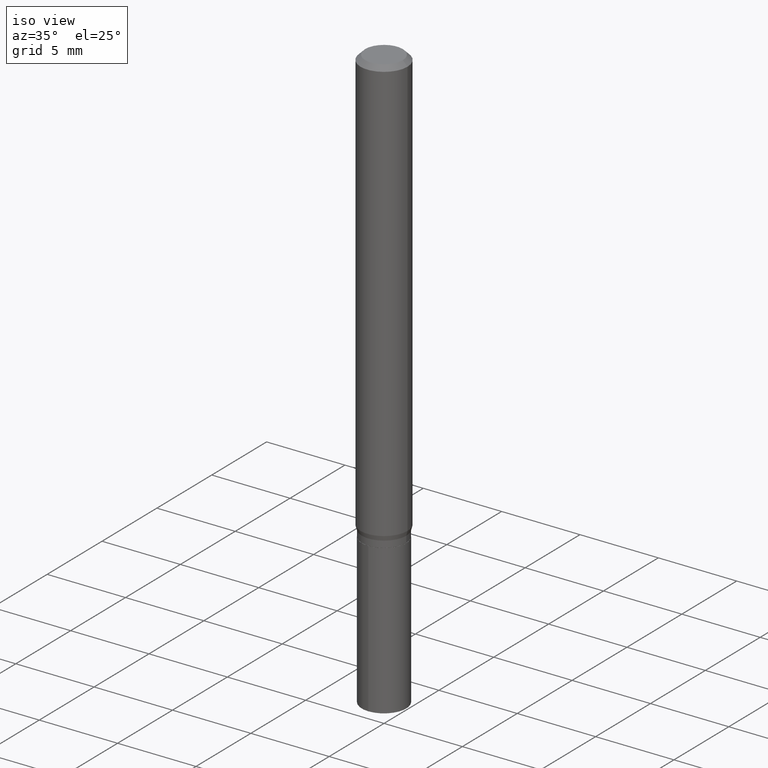
[diagram: clean part render]
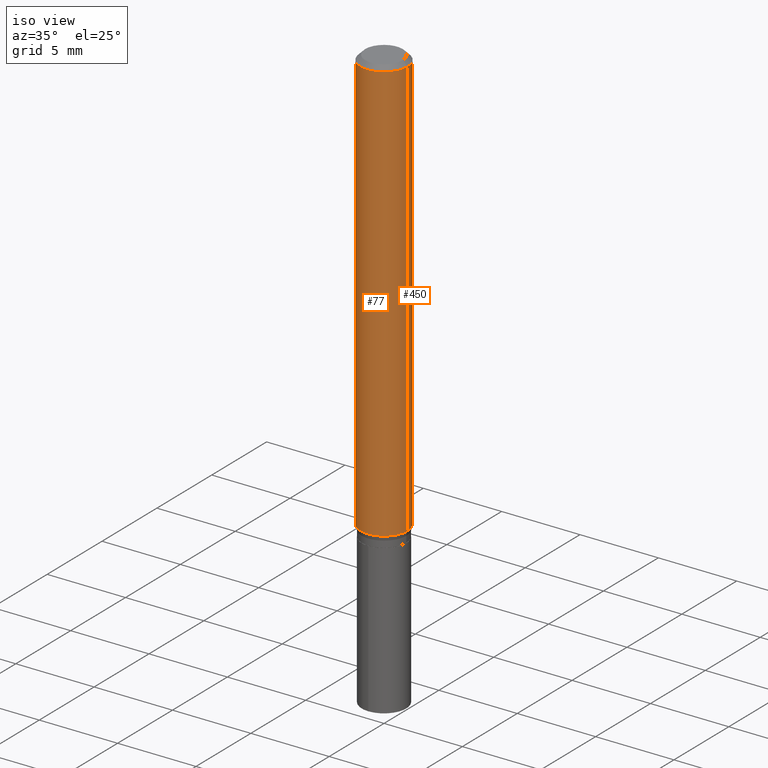
[diagram: same view with one multi-face feature highlighted, each face labeled with its STEP entity id]
A machine part, iso view. The highlighted faces form ONE feature: a constant-radius fillet chain: 2 tangent blend faces with common blend radius 1.4999 mm. The faces share edges in the B-rep.
Their STEP definitions:
[1] entity #77 (Cylinder):
#14 = CARTESIAN_POINT ( 'NONE',  ( 2.606732898851746017E-29, -3.721723723757996266E-15, -1.065944039956157496 ) ) ;
#65 = VECTOR ( 'NONE', #282, 39.37007874015748143 ) ;
#71 = DIRECTION ( 'NONE',  ( -2.445468806185136597E-29, 3.491481338843145583E-15, 1.000000000000000000 ) ) ;
#72 = ORIENTED_EDGE ( 'NONE', *, *, #99, .F. ) ;
#77 = ADVANCED_FACE ( 'NONE', ( #157 ), #399, .T. ) ;
#88 = CIRCLE ( 'NONE', #448, 0.05904999999999999832 ) ;
#99 = EDGE_CURVE ( 'NONE', #136, #147, #88, .T. ) ;
#114 = CARTESIAN_POINT ( 'NONE',  ( -0.05904999999999999832, -1.461903573718526716E-15, -0.01181000000000007218 ) ) ;
#129 = CARTESIAN_POINT ( 'NONE',  ( 0.05904999999999999832, -4.535783407291118600E-16, -0.01181000000000007218 ) ) ;
#136 = VERTEX_POINT ( 'NONE', #114 ) ;
#146 = VERTEX_POINT ( 'NONE', #287 ) ;
#147 = VERTEX_POINT ( 'NONE', #129 ) ;
#157 = FACE_OUTER_BOUND ( 'NONE', #386, .T. ) ;
#171 = EDGE_CURVE ( 'NONE', #378, #136, #398, .T. ) ;
#172 = AXIS2_PLACEMENT_3D ( 'NONE', #14, #71, #333 ) ;
#179 = ORIENTED_EDGE ( 'NONE', *, *, #256, .T. ) ;
#222 = CIRCLE ( 'NONE', #172, 0.05905000000000013016 ) ;
#225 = EDGE_CURVE ( 'NONE', #146, #147, #259, .T. ) ;
#235 = CARTESIAN_POINT ( 'NONE',  ( 0.000000000000000000, 0.000000000000000000, 0.000000000000000000 ) ) ;
#256 = EDGE_CURVE ( 'NONE', #378, #146, #222, .T. ) ;
#259 = LINE ( 'NONE', #375, #402 ) ;
#269 = CARTESIAN_POINT ( 'NONE',  ( 2.888098660104664204E-31, -4.123439461173780263E-17, -0.01181000000000007218 ) ) ;
#274 = DIRECTION ( 'NONE',  ( -2.445468806185136597E-29, 3.491481338843145583E-15, 1.000000000000000000 ) ) ;
#282 = DIRECTION ( 'NONE',  ( -2.445468806185136877E-29, 3.491481338843145188E-15, 1.000000000000000000 ) ) ;
#285 = AXIS2_PLACEMENT_3D ( 'NONE', #235, #321, #469 ) ;
#287 = CARTESIAN_POINT ( 'NONE',  ( 0.05905000000000013016, -4.134067669875371975E-15, -1.065944039956157496 ) ) ;
#289 = CARTESIAN_POINT ( 'NONE',  ( -0.05905000000000013016, -3.302148238291656773E-15, -1.065944039956157496 ) ) ;
#321 = DIRECTION ( 'NONE',  ( -2.445468806185136597E-29, 3.491481338843145583E-15, 1.000000000000000000 ) ) ;
#333 = DIRECTION ( 'NONE',  ( 1.000000000000000000, -6.982962677686265133E-15, 0.000000000000000000 ) ) ;
#375 = CARTESIAN_POINT ( 'NONE',  ( 0.05905000000000006771, -4.123439461173745257E-16, 2.879382386107503723E-30 ) ) ;
#378 = VERTEX_POINT ( 'NONE', #289 ) ;
#383 = ORIENTED_EDGE ( 'NONE', *, *, #171, .F. ) ;
#386 = EDGE_LOOP ( 'NONE', ( #383, #179, #446, #72 ) ) ;
#391 = CARTESIAN_POINT ( 'NONE',  ( -0.05905000000000006771, 4.195754854663396409E-16, -2.904631170795525045E-30 ) ) ;
#394 = DIRECTION ( 'NONE',  ( 1.000000000000000000, -6.982962677686266711E-15, 0.000000000000000000 ) ) ;
#398 = LINE ( 'NONE', #391, #65 ) ;
#399 = CYLINDRICAL_SURFACE ( 'NONE', #285, 0.05905000000000006771 ) ;
#402 = VECTOR ( 'NONE', #451, 39.37007874015748143 ) ;
#446 = ORIENTED_EDGE ( 'NONE', *, *, #225, .T. ) ;
#448 = AXIS2_PLACEMENT_3D ( 'NONE', #269, #274, #394 ) ;
#451 = DIRECTION ( 'NONE',  ( -2.445468806185136877E-29, 3.491481338843145188E-15, 1.000000000000000000 ) ) ;
#469 = DIRECTION ( 'NONE',  ( 1.000000000000000000, -6.982962677686266711E-15, 4.876176775795936353E-29 ) ) ;
[2] entity #450 (Cylinder):
#65 = VECTOR ( 'NONE', #282, 39.37007874015748143 ) ;
#80 = DIRECTION ( 'NONE',  ( 1.000000000000000000, -6.982962677686266711E-15, 0.000000000000000000 ) ) ;
#83 = DIRECTION ( 'NONE',  ( 1.000000000000000000, -6.982962677686266711E-15, 4.876176775795936353E-29 ) ) ;
#113 = ORIENTED_EDGE ( 'NONE', *, *, #441, .F. ) ;
#114 = CARTESIAN_POINT ( 'NONE',  ( -0.05904999999999999832, -1.461903573718526716E-15, -0.01181000000000007218 ) ) ;
#129 = CARTESIAN_POINT ( 'NONE',  ( 0.05904999999999999832, -4.535783407291118600E-16, -0.01181000000000007218 ) ) ;
#136 = VERTEX_POINT ( 'NONE', #114 ) ;
#146 = VERTEX_POINT ( 'NONE', #287 ) ;
#147 = VERTEX_POINT ( 'NONE', #129 ) ;
#168 = CIRCLE ( 'NONE', #353, 0.05905000000000013016 ) ;
#171 = EDGE_CURVE ( 'NONE', #378, #136, #398, .T. ) ;
#193 = CARTESIAN_POINT ( 'NONE',  ( 2.606732898851746017E-29, -3.721723723757996266E-15, -1.065944039956157496 ) ) ;
#224 = AXIS2_PLACEMENT_3D ( 'NONE', #464, #429, #83 ) ;
#225 = EDGE_CURVE ( 'NONE', #146, #147, #259, .T. ) ;
#259 = LINE ( 'NONE', #375, #402 ) ;
#266 = ORIENTED_EDGE ( 'NONE', *, *, #479, .T. ) ;
#273 = DIRECTION ( 'NONE',  ( -2.445468806185136597E-29, 3.491481338843145583E-15, 1.000000000000000000 ) ) ;
#275 = DIRECTION ( 'NONE',  ( -2.445468806185136597E-29, 3.491481338843145583E-15, 1.000000000000000000 ) ) ;
#276 = CARTESIAN_POINT ( 'NONE',  ( 2.888098660104664204E-31, -4.123439461173780263E-17, -0.01181000000000007218 ) ) ;
#278 = DIRECTION ( 'NONE',  ( 1.000000000000000000, -6.982962677686265133E-15, 0.000000000000000000 ) ) ;
#282 = DIRECTION ( 'NONE',  ( -2.445468806185136877E-29, 3.491481338843145188E-15, 1.000000000000000000 ) ) ;
#287 = CARTESIAN_POINT ( 'NONE',  ( 0.05905000000000013016, -4.134067669875371975E-15, -1.065944039956157496 ) ) ;
#289 = CARTESIAN_POINT ( 'NONE',  ( -0.05905000000000013016, -3.302148238291656773E-15, -1.065944039956157496 ) ) ;
#316 = CYLINDRICAL_SURFACE ( 'NONE', #224, 0.05905000000000006771 ) ;
#337 = ORIENTED_EDGE ( 'NONE', *, *, #171, .T. ) ;
#347 = ORIENTED_EDGE ( 'NONE', *, *, #225, .F. ) ;
#353 = AXIS2_PLACEMENT_3D ( 'NONE', #193, #275, #278 ) ;
#362 = CIRCLE ( 'NONE', #377, 0.05904999999999999832 ) ;
#375 = CARTESIAN_POINT ( 'NONE',  ( 0.05905000000000006771, -4.123439461173745257E-16, 2.879382386107503723E-30 ) ) ;
#377 = AXIS2_PLACEMENT_3D ( 'NONE', #276, #273, #80 ) ;
#378 = VERTEX_POINT ( 'NONE', #289 ) ;
#382 = EDGE_LOOP ( 'NONE', ( #266, #337, #113, #347 ) ) ;
#389 = FACE_OUTER_BOUND ( 'NONE', #382, .T. ) ;
#391 = CARTESIAN_POINT ( 'NONE',  ( -0.05905000000000006771, 4.195754854663396409E-16, -2.904631170795525045E-30 ) ) ;
#398 = LINE ( 'NONE', #391, #65 ) ;
#402 = VECTOR ( 'NONE', #451, 39.37007874015748143 ) ;
#429 = DIRECTION ( 'NONE',  ( -2.445468806185136597E-29, 3.491481338843145583E-15, 1.000000000000000000 ) ) ;
#441 = EDGE_CURVE ( 'NONE', #147, #136, #362, .T. ) ;
#450 = ADVANCED_FACE ( 'NONE', ( #389 ), #316, .T. ) ;
#451 = DIRECTION ( 'NONE',  ( -2.445468806185136877E-29, 3.491481338843145188E-15, 1.000000000000000000 ) ) ;
#464 = CARTESIAN_POINT ( 'NONE',  ( 0.000000000000000000, 0.000000000000000000, 0.000000000000000000 ) ) ;
#479 = EDGE_CURVE ( 'NONE', #146, #378, #168, .T. ) ;